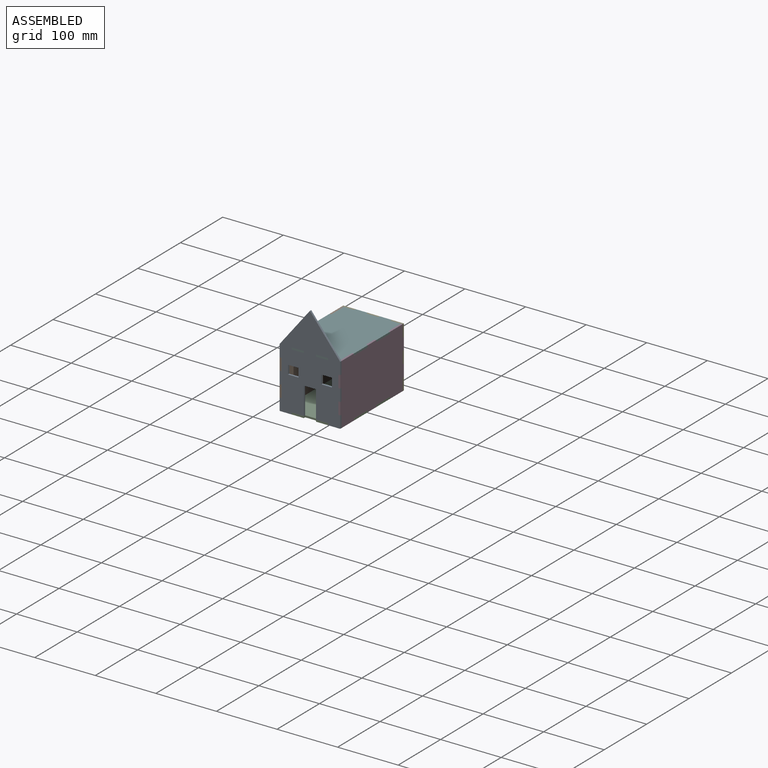
[diagram: assembled view]
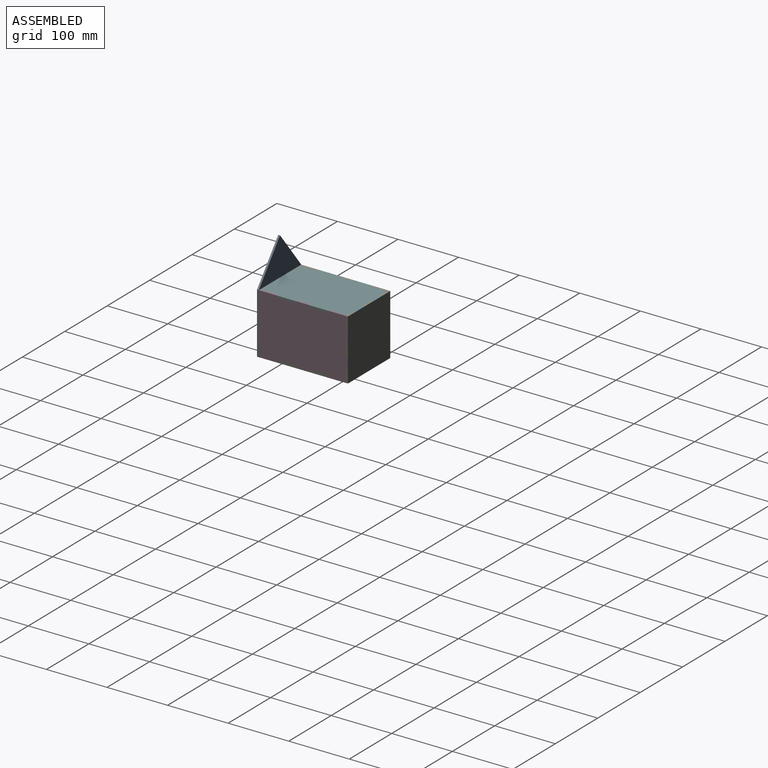
[diagram: assembled view, second angle]
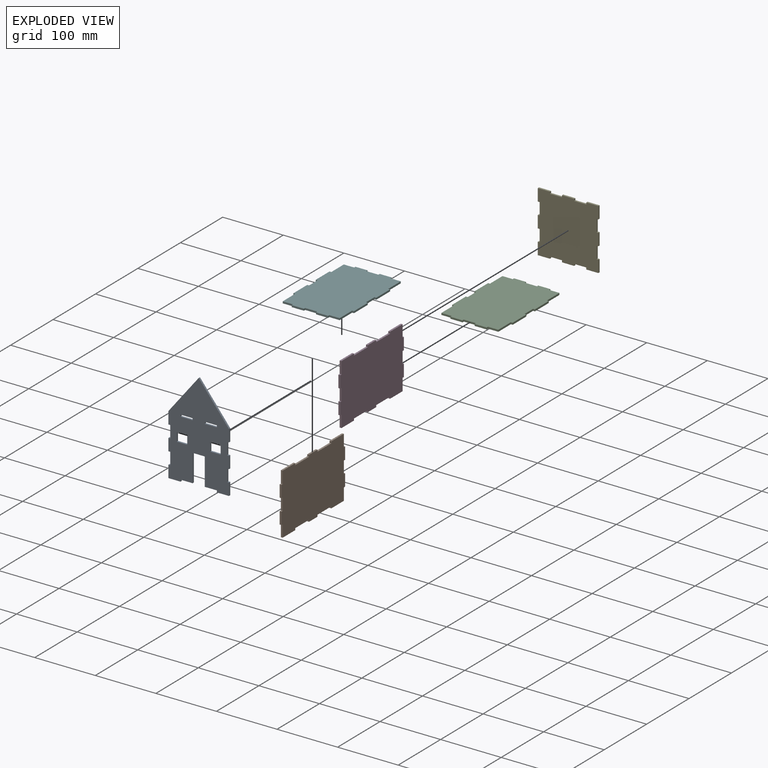
[diagram: exploded view]
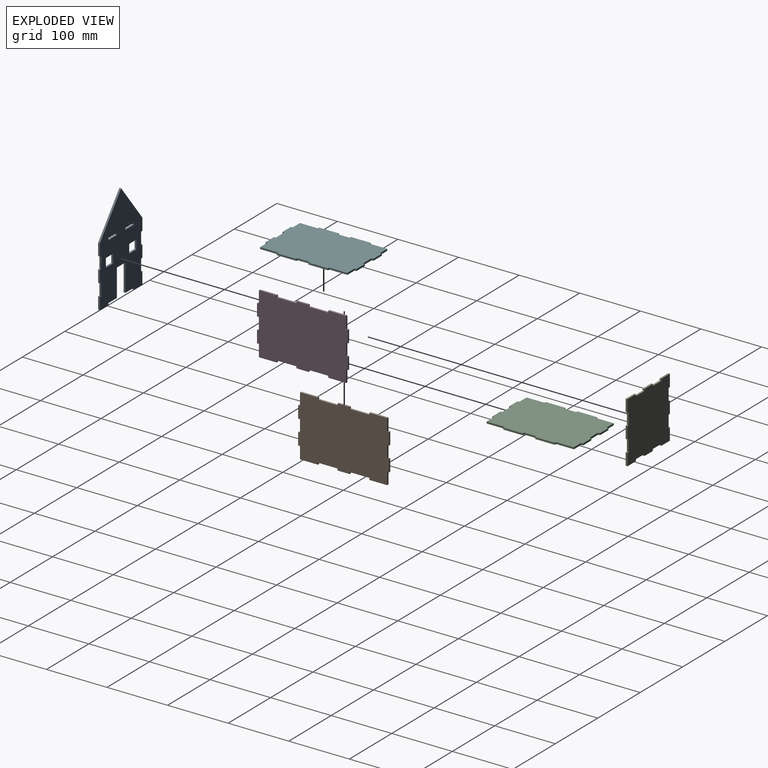
[diagram: exploded view, second angle]
ASSEMBLY  parts=6 mates=5
PART A: 47 faces, bbox 100x3x162.8 mm
  f0: plane 3x3mm, normal (-1,0,0), area 9mm2, adj f1,f32,f33,f34
  f1: plane 20x3mm, normal (0,0,-1), area 60mm2, adj f0,f2,f32,f33
  f2: plane 20x3mm, normal (1,0,0), area 60mm2, adj f1,f3,f32,f33
  f3: plane 3x3mm, normal (0,0,1), area 9mm2, adj f2,f4,f32,f33
  f4: plane 20x3mm, normal (1,0,0), area 60mm2, adj f3,f5,f32,f33
  f5: plane 3x3mm, normal (0,0,-1), area 9mm2, adj f4,f6,f32,f33
  f6: plane 20x3mm, normal (1,0,0), area 60mm2, adj f5,f7,f32,f33
  f7: plane 3x3mm, normal (0,0,1), area 9mm2, adj f6,f8,f32,f33
  f8: plane 20x3mm, normal (1,0,0), area 60mm2, adj f7,f9,f32,f33
  f9: plane 3x3mm, normal (0,0,-1), area 9mm2, adj f8,f10,f32,f33
  f10: plane 20x3mm, normal (1,0,0), area 60mm2, adj f9,f11,f32,f33
  f11: plane 62.77x50mm, normal (0.78,0,0.62), area 240.8mm2, adj f10,f12,f32,f33
  f12: plane 62.77x50mm, normal (-0.78,0,0.62), area 240.8mm2, adj f11,f13,f32,f33
  f13: plane 20x3mm, normal (-1,0,0), area 60mm2, adj f12,f14,f32,f33
  f14: plane 3x3mm, normal (0,0,-1), area 9mm2, adj f13,f15,f32,f33
  f15: plane 20x3mm, normal (-1,0,0), area 60mm2, adj f14,f16,f32,f33
  f16: plane 3x3mm, normal (0,0,1), area 9mm2, adj f15,f17,f32,f33
  f17: plane 20x3mm, normal (-1,0,0), area 60mm2, adj f16,f18,f32,f33
  f18: plane 3x3mm, normal (0,0,-1), area 9mm2, adj f17,f19,f32,f33
  f19: plane 20x3mm, normal (-1,0,0), area 60mm2, adj f18,f20,f32,f33
  f20: plane 3x3mm, normal (0,0,1), area 9mm2, adj f19,f21,f32,f33
  f21: plane 20x3mm, normal (-1,0,0), area 60mm2, adj f20,f22,f32,f33
  f22: plane 20x3mm, normal (0,0,-1), area 60mm2, adj f21,f23,f32,f33
  f23: plane 3x3mm, normal (1,0,0), area 9mm2, adj f22,f32,f33,f35
  f24: plane 20x3mm, normal (0,0,-1), area 60mm2, adj f25,f27,f32,f33
  f25: plane 3x3mm, normal (-1,0,0), area 9mm2, adj f24,f26,f32,f33
  f26: plane 20x3mm, normal (0,0,1), area 60mm2, adj f25,f27,f32,f33
  f27: plane 3x3mm, normal (1,0,0), area 9mm2, adj f24,f26,f32,f33
  f28: plane 20x3mm, normal (0,0,-1), area 60mm2, adj f29,f31,f32,f33
  f29: plane 3x3mm, normal (-1,0,0), area 9mm2, adj f28,f30,f32,f33
  f30: plane 20x3mm, normal (0,0,1), area 60mm2, adj f29,f31,f32,f33
  f31: plane 3x3mm, normal (1,0,0), area 9mm2, adj f28,f30,f32,f33
  f32: plane 162.77x100mm, normal (0,-1,0), area 11194.9mm2, adj f0,f1,f2,f3,f4,f5,f6,f7
  f33: plane 162.77x100mm, normal (0,1,0), area 11194.9mm2, adj f0,f1,f2,f3,f4,f5,f6,f7
  f34: plane 20x3mm, normal (0,0,-1), area 60mm2, adj f0,f32,f33,f37
  f35: plane 20x3mm, normal (0,0,-1), area 60mm2, adj f23,f32,f33,f38
  f36: plane 20x3mm, normal (0,0,-1), area 60mm2, adj f32,f33,f37,f38
  f37: plane 45.31x3mm, normal (-1,0,0), area 135.9mm2, adj f32,f33,f34,f36
  f38: plane 45.31x3mm, normal (1,0,0), area 135.9mm2, adj f32,f33,f35,f36
  f39: plane 14.46x3mm, normal (-1,0,0), area 43.4mm2, adj f32,f33,f40,f42
  f40: plane 17.2x3mm, normal (0,0,-1), area 51.6mm2, adj f32,f33,f39,f41
  f41: plane 14.46x3mm, normal (1,0,0), area 43.4mm2, adj f32,f33,f40,f42
  f42: plane 17.2x3mm, normal (0,0,1), area 51.6mm2, adj f32,f33,f39,f41
  f43: plane 17.2x3mm, normal (0,0,-1), area 51.6mm2, adj f32,f33,f44,f46
  f44: plane 14.46x3mm, normal (1,0,0), area 43.4mm2, adj f32,f33,f43,f45
  f45: plane 17.2x3mm, normal (0,0,1), area 51.6mm2, adj f32,f33,f44,f46
  f46: plane 14.46x3mm, normal (-1,0,0), area 43.4mm2, adj f32,f33,f43,f45
PART B: 38 faces, bbox 150x3x100 mm
  f0: plane 20x3mm, normal (-1,0,0), area 60mm2, adj f1,f35,f36,f37
  f1: plane 3x3mm, normal (0,0,-1), area 9mm2, adj f0,f2,f36,f37
  f2: plane 20x3mm, normal (-1,0,0), area 60mm2, adj f1,f3,f36,f37
  f3: plane 29.5x3mm, normal (0,0,-1), area 88.5mm2, adj f2,f4,f36,f37
  f4: plane 3x3mm, normal (1,0,0), area 9mm2, adj f3,f5,f36,f37
  f5: plane 32.5x3mm, normal (0,0,-1), area 97.5mm2, adj f4,f6,f36,f37
  f6: plane 3x3mm, normal (-1,0,0), area 9mm2, adj f5,f7,f36,f37
  f7: plane 20x3mm, normal (0,0,-1), area 60mm2, adj f6,f8,f36,f37
  f8: plane 3x3mm, normal (1,0,0), area 9mm2, adj f7,f9,f36,f37
  f9: plane 32.5x3mm, normal (0,0,-1), area 97.5mm2, adj f8,f10,f36,f37
  f10: plane 3x3mm, normal (-1,0,0), area 9mm2, adj f9,f11,f36,f37
  f11: plane 29.5x3mm, normal (0,0,-1), area 88.5mm2, adj f10,f12,f36,f37
  f12: plane 20x3mm, normal (1,0,0), area 60mm2, adj f11,f13,f36,f37
  f13: plane 3x3mm, normal (0,0,-1), area 9mm2, adj f12,f14,f36,f37
  f14: plane 20x3mm, normal (1,0,0), area 60mm2, adj f13,f15,f36,f37
  f15: plane 3x3mm, normal (0,0,1), area 9mm2, adj f14,f16,f36,f37
  f16: plane 20x3mm, normal (1,0,0), area 60mm2, adj f15,f17,f36,f37
  f17: plane 3x3mm, normal (0,0,-1), area 9mm2, adj f16,f18,f36,f37
  f18: plane 20x3mm, normal (1,0,0), area 60mm2, adj f17,f19,f36,f37
  f19: plane 3x3mm, normal (0,0,1), area 9mm2, adj f18,f20,f36,f37
  f20: plane 20x3mm, normal (1,0,0), area 60mm2, adj f19,f21,f36,f37
  f21: plane 29.5x3mm, normal (0,0,1), area 88.5mm2, adj f20,f22,f36,f37
  f22: plane 3x3mm, normal (-1,0,0), area 9mm2, adj f21,f23,f36,f37
  f23: plane 32.5x3mm, normal (0,0,1), area 97.5mm2, adj f22,f24,f36,f37
  f24: plane 3x3mm, normal (1,0,0), area 9mm2, adj f23,f25,f36,f37
  f25: plane 20x3mm, normal (0,0,1), area 60mm2, adj f24,f26,f36,f37
  f26: plane 3x3mm, normal (-1,0,0), area 9mm2, adj f25,f27,f36,f37
  f27: plane 32.5x3mm, normal (0,0,1), area 97.5mm2, adj f26,f28,f36,f37
  f28: plane 3x3mm, normal (1,0,0), area 9mm2, adj f27,f29,f36,f37
  f29: plane 29.5x3mm, normal (0,0,1), area 88.5mm2, adj f28,f30,f36,f37
  f30: plane 20x3mm, normal (-1,0,0), area 60mm2, adj f29,f31,f36,f37
  f31: plane 3x3mm, normal (0,0,1), area 9mm2, adj f30,f32,f36,f37
  f32: plane 20x3mm, normal (-1,0,0), area 60mm2, adj f31,f33,f36,f37
  f33: plane 3x3mm, normal (0,0,-1), area 9mm2, adj f32,f34,f36,f37
  f34: plane 20x3mm, normal (-1,0,0), area 60mm2, adj f33,f35,f36,f37
  f35: plane 3x3mm, normal (0,0,1), area 9mm2, adj f0,f34,f36,f37
  f36: plane 150x100mm, normal (0,-1,0), area 14250mm2, adj f0,f1,f2,f3,f4,f5,f6,f7
  f37: plane 150x100mm, normal (0,1,0), area 14250mm2, adj f0,f1,f2,f3,f4,f5,f6,f7
PART C: 38 faces, bbox 100x3x150 mm
  f0: plane 3x3mm, normal (1,0,0), area 9mm2, adj f1,f35,f36,f37
  f1: plane 20x3mm, normal (0,0,1), area 60mm2, adj f0,f2,f36,f37
  f2: plane 3x3mm, normal (-1,0,0), area 9mm2, adj f1,f3,f36,f37
  f3: plane 17x3mm, normal (0,0,1), area 51mm2, adj f2,f4,f36,f37
  f4: plane 29.5x3mm, normal (-1,0,0), area 88.5mm2, adj f3,f5,f36,f37
  f5: plane 3x3mm, normal (0,0,1), area 9mm2, adj f4,f6,f36,f37
  f6: plane 32.5x3mm, normal (-1,0,0), area 97.5mm2, adj f5,f7,f36,f37
  f7: plane 3x3mm, normal (0,0,-1), area 9mm2, adj f6,f8,f36,f37
  f8: plane 20x3mm, normal (-1,0,0), area 60mm2, adj f7,f9,f36,f37
  f9: plane 3x3mm, normal (0,0,1), area 9mm2, adj f8,f10,f36,f37
  f10: plane 32.5x3mm, normal (-1,0,0), area 97.5mm2, adj f9,f11,f36,f37
  f11: plane 3x3mm, normal (0,0,-1), area 9mm2, adj f10,f12,f36,f37
  f12: plane 29.5x3mm, normal (-1,0,0), area 88.5mm2, adj f11,f13,f36,f37
  f13: plane 17x3mm, normal (0,0,-1), area 51mm2, adj f12,f14,f36,f37
  f14: plane 3x3mm, normal (-1,0,0), area 9mm2, adj f13,f15,f36,f37
  f15: plane 20x3mm, normal (0,0,-1), area 60mm2, adj f14,f16,f36,f37
  f16: plane 3x3mm, normal (1,0,0), area 9mm2, adj f15,f17,f36,f37
  f17: plane 20x3mm, normal (0,0,-1), area 60mm2, adj f16,f18,f36,f37
  f18: plane 3x3mm, normal (-1,0,0), area 9mm2, adj f17,f19,f36,f37
  f19: plane 20x3mm, normal (0,0,-1), area 60mm2, adj f18,f20,f36,f37
  f20: plane 3x3mm, normal (1,0,0), area 9mm2, adj f19,f21,f36,f37
  f21: plane 17x3mm, normal (0,0,-1), area 51mm2, adj f20,f22,f36,f37
  f22: plane 29.5x3mm, normal (1,0,0), area 88.5mm2, adj f21,f23,f36,f37
  f23: plane 3x3mm, normal (0,0,-1), area 9mm2, adj f22,f24,f36,f37
  f24: plane 32.5x3mm, normal (1,0,0), area 97.5mm2, adj f23,f25,f36,f37
  f25: plane 3x3mm, normal (0,0,1), area 9mm2, adj f24,f26,f36,f37
  f26: plane 20x3mm, normal (1,0,0), area 60mm2, adj f25,f27,f36,f37
  f27: plane 3x3mm, normal (0,0,-1), area 9mm2, adj f26,f28,f36,f37
  f28: plane 32.5x3mm, normal (1,0,0), area 97.5mm2, adj f27,f29,f36,f37
  f29: plane 3x3mm, normal (0,0,1), area 9mm2, adj f28,f30,f36,f37
  f30: plane 29.5x3mm, normal (1,0,0), area 88.5mm2, adj f29,f31,f36,f37
  f31: plane 17x3mm, normal (0,0,1), area 51mm2, adj f30,f32,f36,f37
  f32: plane 3x3mm, normal (1,0,0), area 9mm2, adj f31,f33,f36,f37
  f33: plane 20x3mm, normal (0,0,1), area 60mm2, adj f32,f34,f36,f37
  f34: plane 3x3mm, normal (-1,0,0), area 9mm2, adj f33,f35,f36,f37
  f35: plane 20x3mm, normal (0,0,1), area 60mm2, adj f0,f34,f36,f37
  f36: plane 150x100mm, normal (0,-1,0), area 14166mm2, adj f0,f1,f2,f3,f4,f5,f6,f7
  f37: plane 150x100mm, normal (0,1,0), area 14166mm2, adj f0,f1,f2,f3,f4,f5,f6,f7
PART D: 38 faces, bbox 150x3x100 mm
  f0: plane 3x3mm, normal (-1,0,0), area 9mm2, adj f1,f35,f36,f37
  f1: plane 29.5x3mm, normal (0,0,-1), area 88.5mm2, adj f0,f2,f36,f37
  f2: plane 20x3mm, normal (1,0,0), area 60mm2, adj f1,f3,f36,f37
  f3: plane 3x3mm, normal (0,0,-1), area 9mm2, adj f2,f4,f36,f37
  f4: plane 20x3mm, normal (1,0,0), area 60mm2, adj f3,f5,f36,f37
  f5: plane 3x3mm, normal (0,0,1), area 9mm2, adj f4,f6,f36,f37
  f6: plane 20x3mm, normal (1,0,0), area 60mm2, adj f5,f7,f36,f37
  f7: plane 3x3mm, normal (0,0,-1), area 9mm2, adj f6,f8,f36,f37
  f8: plane 20x3mm, normal (1,0,0), area 60mm2, adj f7,f9,f36,f37
  f9: plane 3x3mm, normal (0,0,1), area 9mm2, adj f8,f10,f36,f37
  f10: plane 20x3mm, normal (1,0,0), area 60mm2, adj f9,f11,f36,f37
  f11: plane 29.5x3mm, normal (0,0,1), area 88.5mm2, adj f10,f12,f36,f37
  f12: plane 3x3mm, normal (-1,0,0), area 9mm2, adj f11,f13,f36,f37
  f13: plane 32.5x3mm, normal (0,0,1), area 97.5mm2, adj f12,f14,f36,f37
  f14: plane 3x3mm, normal (1,0,0), area 9mm2, adj f13,f15,f36,f37
  f15: plane 20x3mm, normal (0,0,1), area 60mm2, adj f14,f16,f36,f37
  f16: plane 3x3mm, normal (-1,0,0), area 9mm2, adj f15,f17,f36,f37
  f17: plane 32.5x3mm, normal (0,0,1), area 97.5mm2, adj f16,f18,f36,f37
  f18: plane 3x3mm, normal (1,0,0), area 9mm2, adj f17,f19,f36,f37
  f19: plane 29.5x3mm, normal (0,0,1), area 88.5mm2, adj f18,f20,f36,f37
  f20: plane 20x3mm, normal (-1,0,0), area 60mm2, adj f19,f21,f36,f37
  f21: plane 3x3mm, normal (0,0,1), area 9mm2, adj f20,f22,f36,f37
  f22: plane 20x3mm, normal (-1,0,0), area 60mm2, adj f21,f23,f36,f37
  f23: plane 3x3mm, normal (0,0,-1), area 9mm2, adj f22,f24,f36,f37
  f24: plane 20x3mm, normal (-1,0,0), area 60mm2, adj f23,f25,f36,f37
  f25: plane 3x3mm, normal (0,0,1), area 9mm2, adj f24,f26,f36,f37
  f26: plane 20x3mm, normal (-1,0,0), area 60mm2, adj f25,f27,f36,f37
  f27: plane 3x3mm, normal (0,0,-1), area 9mm2, adj f26,f28,f36,f37
  f28: plane 20x3mm, normal (-1,0,0), area 60mm2, adj f27,f29,f36,f37
  f29: plane 29.5x3mm, normal (0,0,-1), area 88.5mm2, adj f28,f30,f36,f37
  f30: plane 3x3mm, normal (1,0,0), area 9mm2, adj f29,f31,f36,f37
  f31: plane 32.5x3mm, normal (0,0,-1), area 97.5mm2, adj f30,f32,f36,f37
  f32: plane 3x3mm, normal (-1,0,0), area 9mm2, adj f31,f33,f36,f37
  f33: plane 20x3mm, normal (0,0,-1), area 60mm2, adj f32,f34,f36,f37
  f34: plane 3x3mm, normal (1,0,0), area 9mm2, adj f33,f35,f36,f37
  f35: plane 32.5x3mm, normal (0,0,-1), area 97.5mm2, adj f0,f34,f36,f37
  f36: plane 150x100mm, normal (0,-1,0), area 14250mm2, adj f0,f1,f2,f3,f4,f5,f6,f7
  f37: plane 150x100mm, normal (0,1,0), area 14250mm2, adj f0,f1,f2,f3,f4,f5,f6,f7
PART E: 38 faces, bbox 100x3x100 mm
  f0: plane 3x3mm, normal (0,0,1), area 9mm2, adj f1,f35,f36,f37
  f1: plane 20x3mm, normal (-1,0,0), area 60mm2, adj f0,f2,f36,f37
  f2: plane 20x3mm, normal (0,0,-1), area 60mm2, adj f1,f3,f36,f37
  f3: plane 3x3mm, normal (1,0,0), area 9mm2, adj f2,f4,f36,f37
  f4: plane 20x3mm, normal (0,0,-1), area 60mm2, adj f3,f5,f36,f37
  f5: plane 3x3mm, normal (-1,0,0), area 9mm2, adj f4,f6,f36,f37
  f6: plane 20x3mm, normal (0,0,-1), area 60mm2, adj f5,f7,f36,f37
  f7: plane 3x3mm, normal (1,0,0), area 9mm2, adj f6,f8,f36,f37
  f8: plane 20x3mm, normal (0,0,-1), area 60mm2, adj f7,f9,f36,f37
  f9: plane 3x3mm, normal (-1,0,0), area 9mm2, adj f8,f10,f36,f37
  f10: plane 20x3mm, normal (0,0,-1), area 60mm2, adj f9,f11,f36,f37
  f11: plane 20x3mm, normal (1,0,0), area 60mm2, adj f10,f12,f36,f37
  f12: plane 3x3mm, normal (0,0,1), area 9mm2, adj f11,f13,f36,f37
  f13: plane 20x3mm, normal (1,0,0), area 60mm2, adj f12,f14,f36,f37
  f14: plane 3x3mm, normal (0,0,-1), area 9mm2, adj f13,f15,f36,f37
  f15: plane 20x3mm, normal (1,0,0), area 60mm2, adj f14,f16,f36,f37
  f16: plane 3x3mm, normal (0,0,1), area 9mm2, adj f15,f17,f36,f37
  f17: plane 20x3mm, normal (1,0,0), area 60mm2, adj f16,f18,f36,f37
  f18: plane 3x3mm, normal (0,0,-1), area 9mm2, adj f17,f19,f36,f37
  f19: plane 20x3mm, normal (1,0,0), area 60mm2, adj f18,f20,f36,f37
  f20: plane 20x3mm, normal (0,0,1), area 60mm2, adj f19,f21,f36,f37
  f21: plane 3x3mm, normal (-1,0,0), area 9mm2, adj f20,f22,f36,f37
  f22: plane 20x3mm, normal (0,0,1), area 60mm2, adj f21,f23,f36,f37
  f23: plane 3x3mm, normal (1,0,0), area 9mm2, adj f22,f24,f36,f37
  f24: plane 20x3mm, normal (0,0,1), area 60mm2, adj f23,f25,f36,f37
  f25: plane 3x3mm, normal (-1,0,0), area 9mm2, adj f24,f26,f36,f37
  f26: plane 20x3mm, normal (0,0,1), area 60mm2, adj f25,f27,f36,f37
  f27: plane 3x3mm, normal (1,0,0), area 9mm2, adj f26,f28,f36,f37
  f28: plane 20x3mm, normal (0,0,1), area 60mm2, adj f27,f29,f36,f37
  f29: plane 20x3mm, normal (-1,0,0), area 60mm2, adj f28,f30,f36,f37
  f30: plane 3x3mm, normal (0,0,-1), area 9mm2, adj f29,f31,f36,f37
  f31: plane 20x3mm, normal (-1,0,0), area 60mm2, adj f30,f32,f36,f37
  f32: plane 3x3mm, normal (0,0,1), area 9mm2, adj f31,f33,f36,f37
  f33: plane 20x3mm, normal (-1,0,0), area 60mm2, adj f32,f34,f36,f37
  f34: plane 3x3mm, normal (0,0,-1), area 9mm2, adj f33,f35,f36,f37
  f35: plane 20x3mm, normal (-1,0,0), area 60mm2, adj f0,f34,f36,f37
  f36: plane 100x100mm, normal (0,-1,0), area 9520mm2, adj f0,f1,f2,f3,f4,f5,f6,f7
  f37: plane 100x100mm, normal (0,1,0), area 9520mm2, adj f0,f1,f2,f3,f4,f5,f6,f7
PART F: 38 faces, bbox 100x3x150 mm
  f0: plane 3x3mm, normal (0,0,-1), area 9mm2, adj f1,f35,f36,f37
  f1: plane 32.5x3mm, normal (1,0,0), area 97.5mm2, adj f0,f2,f36,f37
  f2: plane 3x3mm, normal (0,0,1), area 9mm2, adj f1,f3,f36,f37
  f3: plane 29.5x3mm, normal (1,0,0), area 88.5mm2, adj f2,f4,f36,f37
  f4: plane 17x3mm, normal (0,0,1), area 51mm2, adj f3,f5,f36,f37
  f5: plane 3x3mm, normal (1,0,0), area 9mm2, adj f4,f6,f36,f37
  f6: plane 20x3mm, normal (0,0,1), area 60mm2, adj f5,f7,f36,f37
  f7: plane 3x3mm, normal (-1,0,0), area 9mm2, adj f6,f8,f36,f37
  f8: plane 20x3mm, normal (0,0,1), area 60mm2, adj f7,f9,f36,f37
  f9: plane 3x3mm, normal (1,0,0), area 9mm2, adj f8,f10,f36,f37
  f10: plane 20x3mm, normal (0,0,1), area 60mm2, adj f9,f11,f36,f37
  f11: plane 3x3mm, normal (-1,0,0), area 9mm2, adj f10,f12,f36,f37
  f12: plane 17x3mm, normal (0,0,1), area 51mm2, adj f11,f13,f36,f37
  f13: plane 29.5x3mm, normal (-1,0,0), area 88.5mm2, adj f12,f14,f36,f37
  f14: plane 3x3mm, normal (0,0,1), area 9mm2, adj f13,f15,f36,f37
  f15: plane 32.5x3mm, normal (-1,0,0), area 97.5mm2, adj f14,f16,f36,f37
  f16: plane 3x3mm, normal (0,0,-1), area 9mm2, adj f15,f17,f36,f37
  f17: plane 20x3mm, normal (-1,0,0), area 60mm2, adj f16,f18,f36,f37
  f18: plane 3x3mm, normal (0,0,1), area 9mm2, adj f17,f19,f36,f37
  f19: plane 32.5x3mm, normal (-1,0,0), area 97.5mm2, adj f18,f20,f36,f37
  f20: plane 3x3mm, normal (0,0,-1), area 9mm2, adj f19,f21,f36,f37
  f21: plane 29.5x3mm, normal (-1,0,0), area 88.5mm2, adj f20,f22,f36,f37
  f22: plane 17x3mm, normal (0,0,-1), area 51mm2, adj f21,f23,f36,f37
  f23: plane 3x3mm, normal (-1,0,0), area 9mm2, adj f22,f24,f36,f37
  f24: plane 20x3mm, normal (0,0,-1), area 60mm2, adj f23,f25,f36,f37
  f25: plane 3x3mm, normal (1,0,0), area 9mm2, adj f24,f26,f36,f37
  f26: plane 20x3mm, normal (0,0,-1), area 60mm2, adj f25,f27,f36,f37
  f27: plane 3x3mm, normal (-1,0,0), area 9mm2, adj f26,f28,f36,f37
  f28: plane 20x3mm, normal (0,0,-1), area 60mm2, adj f27,f29,f36,f37
  f29: plane 3x3mm, normal (1,0,0), area 9mm2, adj f28,f30,f36,f37
  f30: plane 17x3mm, normal (0,0,-1), area 51mm2, adj f29,f31,f36,f37
  f31: plane 29.5x3mm, normal (1,0,0), area 88.5mm2, adj f30,f32,f36,f37
  f32: plane 3x3mm, normal (0,0,-1), area 9mm2, adj f31,f33,f36,f37
  f33: plane 32.5x3mm, normal (1,0,0), area 97.5mm2, adj f32,f34,f36,f37
  f34: plane 3x3mm, normal (0,0,1), area 9mm2, adj f33,f35,f36,f37
  f35: plane 20x3mm, normal (1,0,0), area 60mm2, adj f0,f34,f36,f37
  f36: plane 150x100mm, normal (0,-1,0), area 14166mm2, adj f0,f1,f2,f3,f4,f5,f6,f7
  f37: plane 150x100mm, normal (0,1,0), area 14166mm2, adj f0,f1,f2,f3,f4,f5,f6,f7
PLACE A at identity fixed
PLACE B rot(axis=(0,0,1),90deg) t=(-43.65,-159.35,100)mm
PLACE C rot(axis=(1,0,0),90deg) t=(0,129.82,135.82)mm
PLACE D rot(axis=(0,0,1),90deg) t=(53.35,-159.35,0)mm
PLACE E t=(-100,147,0)mm
PLACE F rot(axis=(1,0,0),90deg) t=(-100,129.82,232.82)mm
MATE fastened F.f36 <-> A.f30  axis (0,0,-1) through (-13.65,-3,229.82)mm
MATE fastened B.f29 <-> F.f37  axis (0,0,1) through (-40.65,0,232.82)mm
MATE fastened D.f19 <-> F.f37  axis (0,0,1) through (53.35,0,232.82)mm
MATE fastened E.f36 <-> C.f17  axis (0,-1,0) through (6.35,144,132.82)mm
MATE fastened C.f1 <-> A.f32  axis (0,-1,0) through (-13.65,-3,135.82)mm
